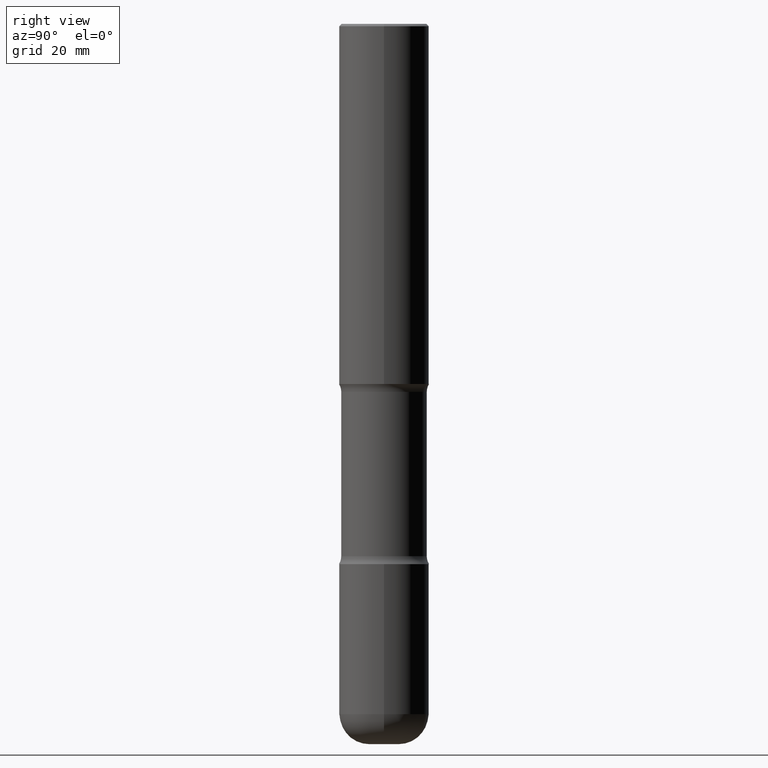
[diagram: clean part render]
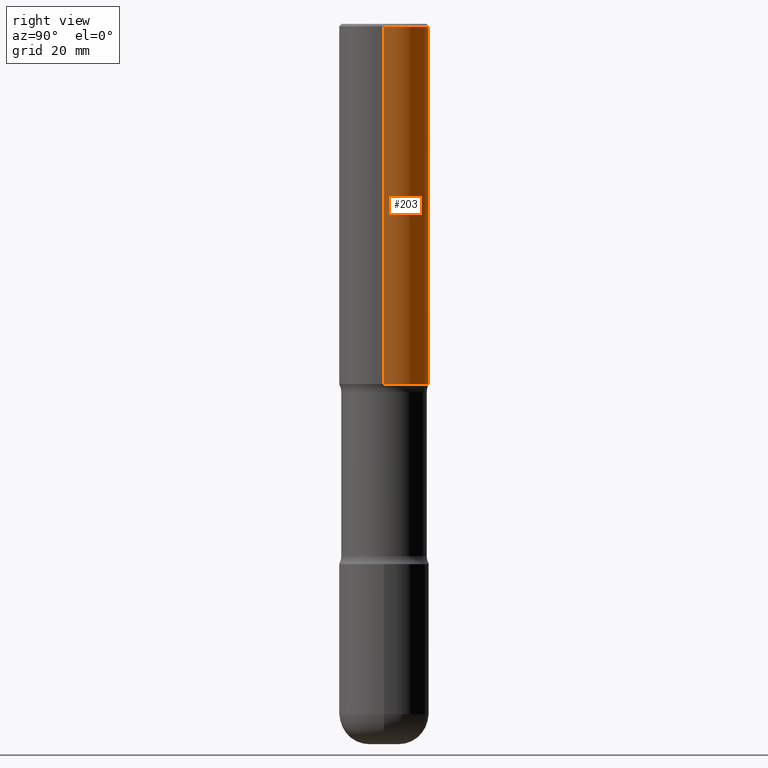
[diagram: same view with one face highlighted and labeled with its STEP entity id]
A machine part, right view. The second image highlights one B-rep face of the part: STEP entity #203.
In plain terms, the highlighted cylindrical surface (partial cylindrical patch) has radius 9.525 mm, axis along (-0, 0, 1).
Its self-contained STEP definition (entity closure, byte-faithful):
#13 = VERTEX_POINT ( 'NONE', #255 ) ;
#46 = DIRECTION ( 'NONE',  ( 1.000000000000000000, -6.982962677686266711E-15, 4.876176775795935793E-29 ) ) ;
#77 = VECTOR ( 'NONE', #159, 39.37007874015748143 ) ;
#85 = AXIS2_PLACEMENT_3D ( 'NONE', #426, #514, #46 ) ;
#87 = VERTEX_POINT ( 'NONE', #202 ) ;
#152 = LINE ( 'NONE', #325, #77 ) ;
#159 = DIRECTION ( 'NONE',  ( -2.445468806185136877E-29, 3.491481338843145188E-15, 1.000000000000000000 ) ) ;
#165 = CARTESIAN_POINT ( 'NONE',  ( 4.890937612370289799E-31, -6.982962677686315028E-17, -0.02000000000000006981 ) ) ;
#175 = CIRCLE ( 'NONE', #502, 0.3750000000000001110 ) ;
#179 = CYLINDRICAL_SURFACE ( 'NONE', #85, 0.3750000000000002220 ) ;
#181 = DIRECTION ( 'NONE',  ( -2.445468806185136597E-29, 3.491481338843145583E-15, 1.000000000000000000 ) ) ;
#182 = ORIENTED_EDGE ( 'NONE', *, *, #475, .T. ) ;
#191 = ORIENTED_EDGE ( 'NONE', *, *, #526, .F. ) ;
#202 = CARTESIAN_POINT ( 'NONE',  ( 0.3750000000000003886, -1.309305502066178637E-14, -2.999999999999999112 ) ) ;
#203 = ADVANCED_FACE ( 'NONE', ( #261 ), #179, .T. ) ;
#232 = ORIENTED_EDGE ( 'NONE', *, *, #294, .F. ) ;
#255 = CARTESIAN_POINT ( 'NONE',  ( -0.3750000000000003886, -2.607601562552767029E-15, -2.999999999999999112 ) ) ;
#261 = FACE_OUTER_BOUND ( 'NONE', #299, .T. ) ;
#263 = EDGE_CURVE ( 'NONE', #13, #340, #511, .T. ) ;
#274 = ORIENTED_EDGE ( 'NONE', *, *, #263, .T. ) ;
#281 = VECTOR ( 'NONE', #308, 39.37007874015748143 ) ;
#282 = DIRECTION ( 'NONE',  ( 1.000000000000000000, -6.982962677686265922E-15, 0.000000000000000000 ) ) ;
#283 = VERTEX_POINT ( 'NONE', #555 ) ;
#294 = EDGE_CURVE ( 'NONE', #283, #340, #175, .T. ) ;
#298 = DIRECTION ( 'NONE',  ( 1.000000000000000000, -6.982962677686265922E-15, 0.000000000000000000 ) ) ;
#299 = EDGE_LOOP ( 'NONE', ( #182, #274, #232, #191 ) ) ;
#308 = DIRECTION ( 'NONE',  ( -2.445468806185136877E-29, 3.491481338843145188E-15, 1.000000000000000000 ) ) ;
#314 = CARTESIAN_POINT ( 'NONE',  ( -0.3750000000000001110, 2.548781377355487113E-15, -0.02000000000000006981 ) ) ;
#325 = CARTESIAN_POINT ( 'NONE',  ( 0.3750000000000002220, -2.618611004132351594E-15, 1.828566290923477043E-29 ) ) ;
#340 = VERTEX_POINT ( 'NONE', #314 ) ;
#385 = CARTESIAN_POINT ( 'NONE',  ( -0.3750000000000002220, 2.664535259100377275E-15, -1.844600658845590719E-29 ) ) ;
#391 = DIRECTION ( 'NONE',  ( -2.445468806185136597E-29, 3.491481338843145583E-15, 1.000000000000000000 ) ) ;
#426 = CARTESIAN_POINT ( 'NONE',  ( 0.000000000000000000, 0.000000000000000000, 0.000000000000000000 ) ) ;
#466 = AXIS2_PLACEMENT_3D ( 'NONE', #542, #181, #282 ) ;
#473 = CIRCLE ( 'NONE', #466, 0.3750000000000003886 ) ;
#475 = EDGE_CURVE ( 'NONE', #87, #13, #473, .T. ) ;
#502 = AXIS2_PLACEMENT_3D ( 'NONE', #165, #391, #298 ) ;
#511 = LINE ( 'NONE', #385, #281 ) ;
#514 = DIRECTION ( 'NONE',  ( -2.445468806185136597E-29, 3.491481338843145583E-15, 1.000000000000000000 ) ) ;
#526 = EDGE_CURVE ( 'NONE', #87, #283, #152, .T. ) ;
#542 = CARTESIAN_POINT ( 'NONE',  ( 7.336406418555407548E-29, -1.047444401652943320E-14, -2.999999999999999112 ) ) ;
#555 = CARTESIAN_POINT ( 'NONE',  ( 0.3750000000000001110, -2.642516375941188423E-15, -0.02000000000000006981 ) ) ;